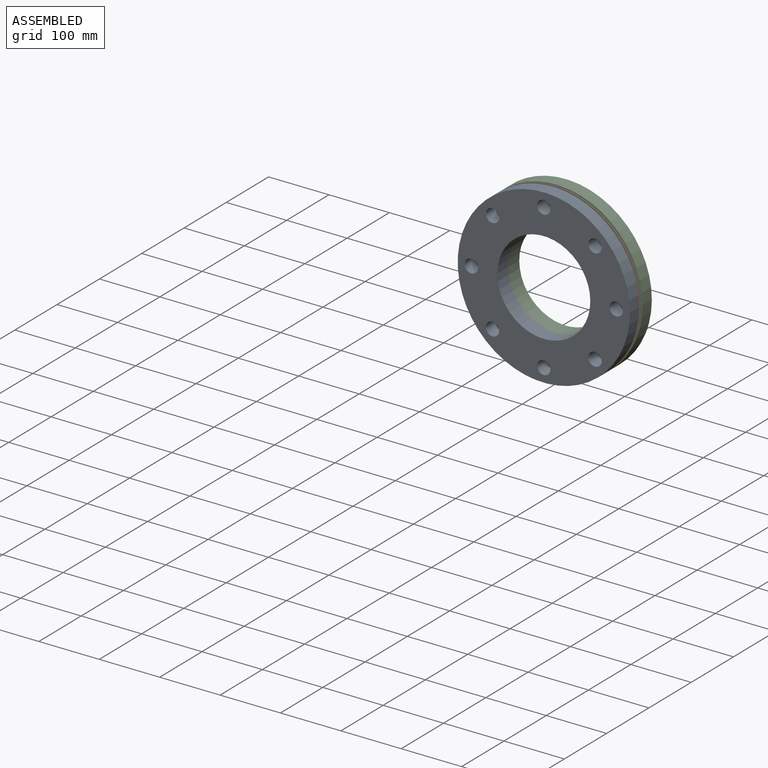
[diagram: assembled view]
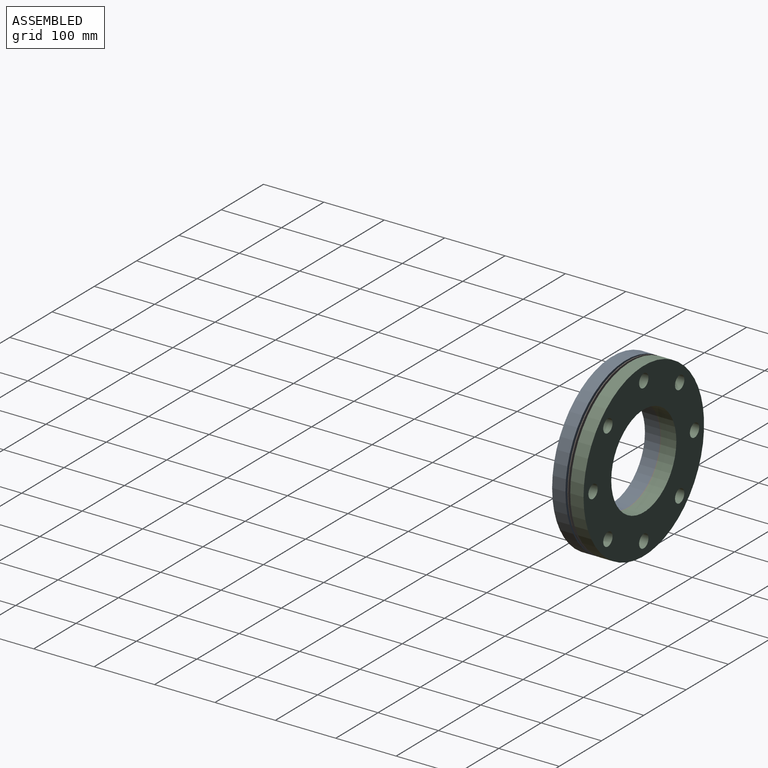
[diagram: assembled view, second angle]
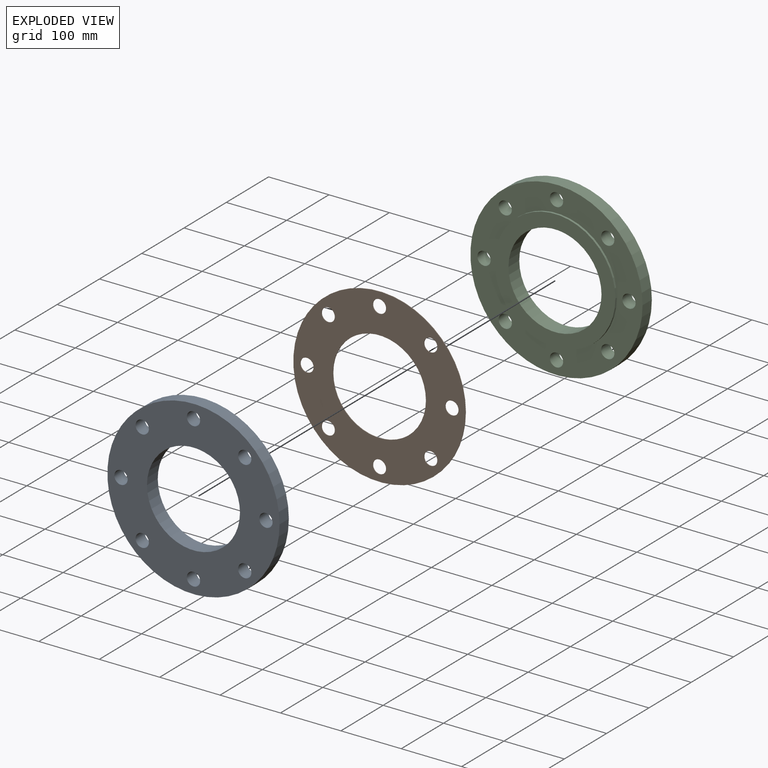
[diagram: exploded view]
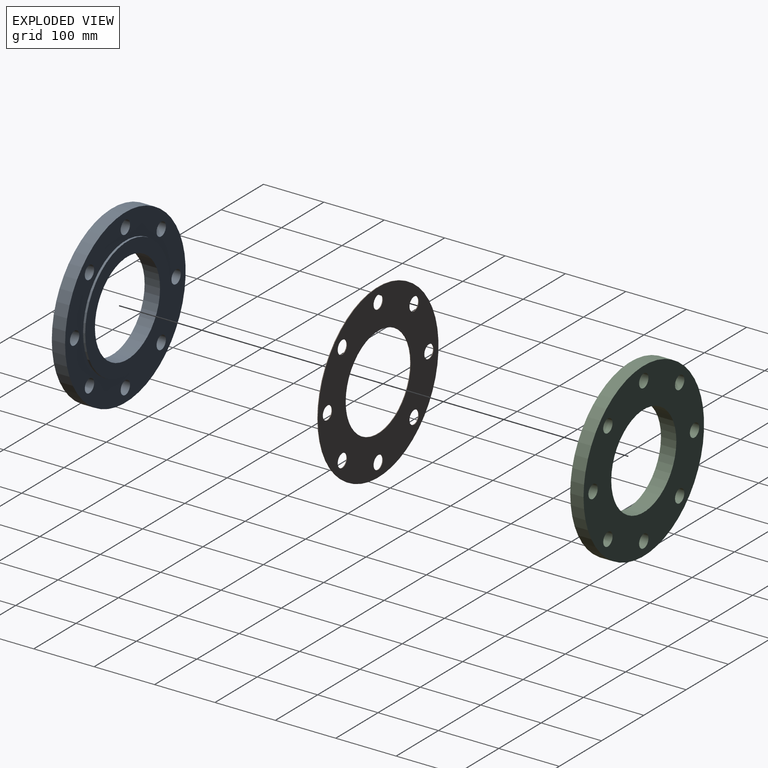
[diagram: exploded view, second angle]
ASSEMBLY  parts=3 mates=2
PART A: 14 faces, bbox 285x25.5x285 mm
  f0: cylinder r=11mm len=22mm, axis (0,1,0), area 1520.5mm2, adj f10,f11
  f1: cylinder r=11mm len=22mm, axis (0,1,0), area 1520.5mm2, adj f10,f11
  f2: cylinder r=11mm len=22mm, axis (0,1,0), area 1520.5mm2, adj f10,f11
  f3: cylinder r=11mm len=22mm, axis (0,1,0), area 1520.5mm2, adj f10,f11
  f4: cylinder r=11mm len=22mm, axis (0,1,0), area 1520.5mm2, adj f10,f11
  f5: cylinder r=11mm len=22mm, axis (0,1,0), area 1520.5mm2, adj f10,f11
  f6: cylinder r=11mm len=22mm, axis (0,1,0), area 1520.5mm2, adj f10,f11
  f7: cylinder r=11mm len=22mm, axis (0,1,0), area 1520.5mm2, adj f10,f11
  f8: cylinder r=77mm len=154mm, axis (0,1,0), area 12337mm2, adj f10,f13
  f9: cylinder r=142.5mm len=285mm, axis (0,1,0), area 19697.8mm2, adj f10,f11
  f10: plane 285x285mm, normal (0,-1,0), area 42126.4mm2, adj f0,f1,f2,f3,f4,f5,f6,f7
  f11: plane 285x285mm, normal (0,1,0), area 29337mm2, adj f0,f1,f2,f3,f4,f5,f6,f7
  f12: cylinder r=100mm len=200mm, axis (0,-1,0), area 2199.1mm2, adj f11,f13
  f13: plane 200x200mm, normal (0,1,0), area 12789.4mm2, adj f8,f12
PART B: 12 faces, bbox 285x1x285 mm
  f0: cylinder r=11mm len=22mm, axis (0,1,0), area 69.1mm2, adj f10,f11
  f1: cylinder r=11mm len=22mm, axis (0,1,0), area 69.1mm2, adj f10,f11
  f2: cylinder r=11mm len=22mm, axis (0,1,0), area 69.1mm2, adj f10,f11
  f3: cylinder r=11mm len=22mm, axis (0,1,0), area 69.1mm2, adj f10,f11
  f4: cylinder r=11mm len=22mm, axis (0,1,0), area 69.1mm2, adj f10,f11
  f5: cylinder r=11mm len=22mm, axis (0,1,0), area 69.1mm2, adj f10,f11
  f6: cylinder r=11mm len=22mm, axis (0,1,0), area 69.1mm2, adj f10,f11
  f7: cylinder r=11mm len=22mm, axis (0,1,0), area 69.1mm2, adj f10,f11
  f8: cylinder r=77mm len=154mm, axis (0,1,0), area 483.8mm2, adj f10,f11
  f9: cylinder r=142.5mm len=285mm, axis (0,1,0), area 895.4mm2, adj f10,f11
  f10: plane 285x285mm, normal (0,-1,0), area 42126.4mm2, adj f0,f1,f2,f3,f4,f5,f6,f7
  f11: plane 285x285mm, normal (0,1,0), area 42126.4mm2, adj f0,f1,f2,f3,f4,f5,f6,f7
PART C: same geometry as A
PLACE A t=(-342.31,-215.57,-44.16)mm
PLACE B rot(axis=(1,0,0),180deg) t=(-342.31,-234.07,1220.16)mm
PLACE C rot(axis=(1,0,0),180deg) t=(-342.31,-207.57,1220.16)mm
MATE fastened B.f8 <-> A.f8  axis (0,-1,0) through (92.11,-212.07,588)mm
MATE fastened C.f8 <-> B.f8  axis (0,-1,0) through (92.11,-211.07,588)mm
